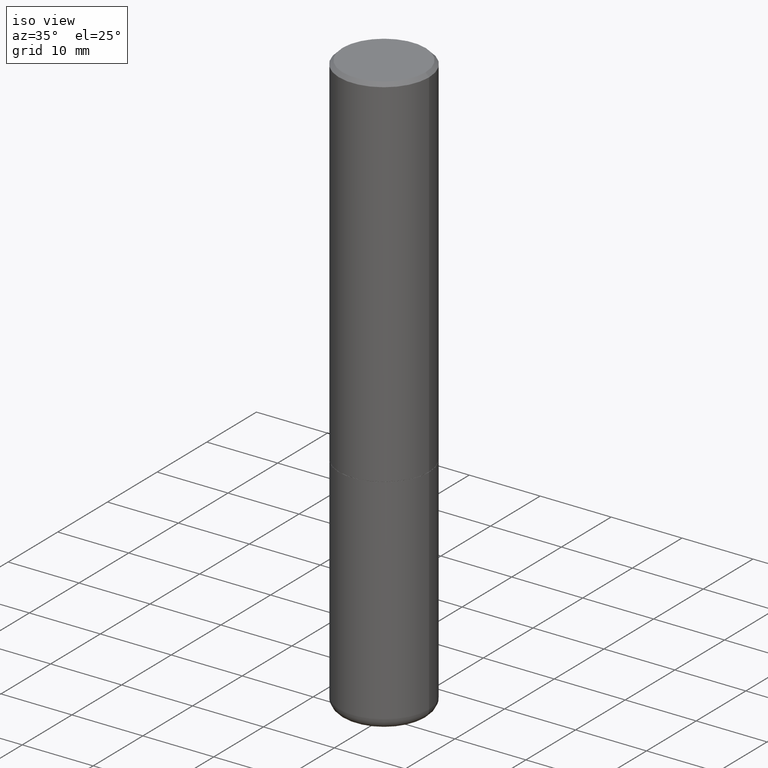
[diagram: clean part render]
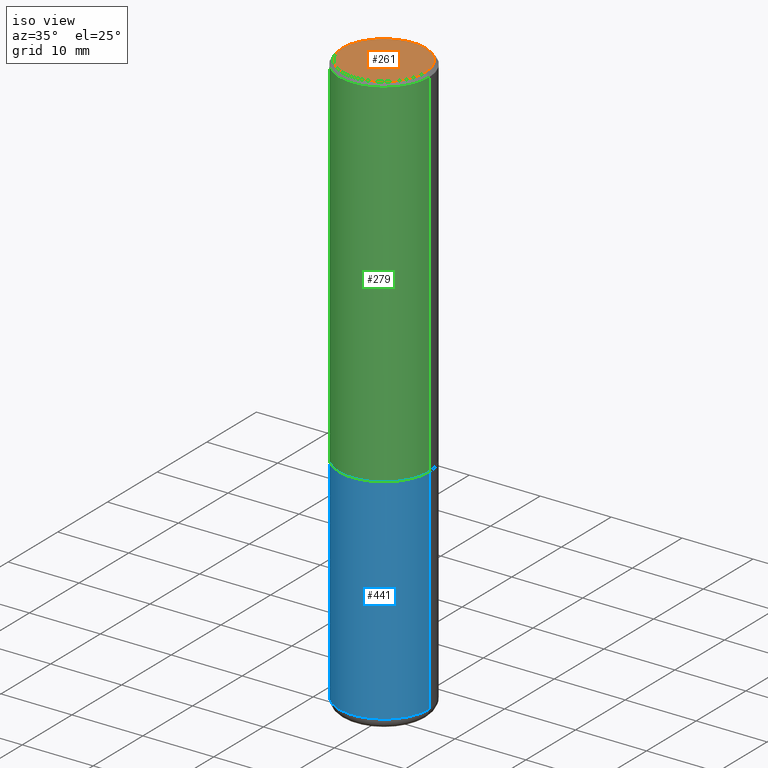
[diagram: same view with three faces highlighted in distinct colors, each labeled with its STEP entity id]
A machine part, iso view with three faces highlighted in distinct colors.
Their STEP definitions:

[orange] entity #261 — the highlighted planar face has unit normal (0, -0, -1).
#49 = EDGE_LOOP ( 'NONE', ( #89, #168 ) ) ;
#83 = DIRECTION ( 'NONE',  ( 1.000000000000000000, -6.982962677686266711E-15, 4.876225828469324576E-29 ) ) ;
#89 = ORIENTED_EDGE ( 'NONE', *, *, #422, .T. ) ;
#101 = CARTESIAN_POINT ( 'NONE',  ( 0.2299999999999992606, -1.681434332853594870E-15, 4.268512490111905999E-18 ) ) ;
#103 = AXIS2_PLACEMENT_3D ( 'NONE', #117, #234, #420 ) ;
#117 = CARTESIAN_POINT ( 'NONE',  ( -1.043851414335219820E-46, 1.490343170380447200E-32, 4.268512490100411279E-18 ) ) ;
#154 = AXIS2_PLACEMENT_3D ( 'NONE', #227, #376, #401 ) ;
#165 = AXIS2_PLACEMENT_3D ( 'NONE', #229, #181, #83 ) ;
#168 = ORIENTED_EDGE ( 'NONE', *, *, #338, .T. ) ;
#181 = DIRECTION ( 'NONE',  ( -2.445468806185136597E-29, 3.491481338843145583E-15, 1.000000000000000000 ) ) ;
#227 = CARTESIAN_POINT ( 'NONE',  ( 1.606081415867835940E-15, 0.2299999999999992606, -8.009064516888707148E-16 ) ) ;
#229 = CARTESIAN_POINT ( 'NONE',  ( -1.043851414335219820E-46, 1.490343170380447200E-32, 4.268512490100411279E-18 ) ) ;
#234 = DIRECTION ( 'NONE',  ( -2.445468806185136597E-29, 3.491481338843145583E-15, 1.000000000000000000 ) ) ;
#253 = FACE_OUTER_BOUND ( 'NONE', #49, .T. ) ;
#254 = VERTEX_POINT ( 'NONE', #101 ) ;
#261 = ADVANCED_FACE ( 'NONE', ( #253 ), #264, .F. ) ;
#264 = PLANE ( 'NONE',  #154 ) ;
#333 = CIRCLE ( 'NONE', #103, 0.2299999999999992606 ) ;
#338 = EDGE_CURVE ( 'NONE', #254, #395, #393, .T. ) ;
#376 = DIRECTION ( 'NONE',  ( 2.438088387897960049E-29, -3.491481338843145188E-15, -1.000000000000000000 ) ) ;
#393 = CIRCLE ( 'NONE', #165, 0.2299999999999992606 ) ;
#395 = VERTEX_POINT ( 'NONE', #484 ) ;
#401 = DIRECTION ( 'NONE',  ( -1.000000000000000000, 6.982962677686265922E-15, -4.876176775795935793E-29 ) ) ;
#420 = DIRECTION ( 'NONE',  ( 1.000000000000000000, -6.982962677686266711E-15, 4.876225828469324576E-29 ) ) ;
#422 = EDGE_CURVE ( 'NONE', #395, #254, #333, .T. ) ;
#484 = CARTESIAN_POINT ( 'NONE',  ( -0.2299999999999992606, 1.640996229256267786E-15, 4.268512490089056766E-18 ) ) ;

[blue] entity #441 — the highlighted cylindrical surface (partial cylindrical patch) has radius 6.35 mm, axis along (-0, 0, 1).
#6 = EDGE_CURVE ( 'NONE', #397, #482, #162, .T. ) ;
#31 = DIRECTION ( 'NONE',  ( -2.445468806185136597E-29, 3.491481338843145583E-15, 1.000000000000000000 ) ) ;
#34 = LINE ( 'NONE', #148, #460 ) ;
#37 = DIRECTION ( 'NONE',  ( 1.000000000000000000, -6.982962677686266711E-15, 4.876176775795935793E-29 ) ) ;
#57 = EDGE_CURVE ( 'NONE', #318, #175, #34, .T. ) ;
#74 = DIRECTION ( 'NONE',  ( 1.000000000000000000, -6.982962677686262766E-15, 0.000000000000000000 ) ) ;
#93 = CIRCLE ( 'NONE', #135, 0.2500000000000000000 ) ;
#95 = EDGE_CURVE ( 'NONE', #175, #482, #414, .T. ) ;
#96 = DIRECTION ( 'NONE',  ( 1.000000000000000000, -6.982962677686268288E-15, 0.000000000000000000 ) ) ;
#113 = CARTESIAN_POINT ( 'NONE',  ( 0.000000000000000000, 0.000000000000000000, 0.000000000000000000 ) ) ;
#130 = DIRECTION ( 'NONE',  ( -2.445468806185136877E-29, 3.491481338843145188E-15, 1.000000000000000000 ) ) ;
#135 = AXIS2_PLACEMENT_3D ( 'NONE', #408, #31, #74 ) ;
#140 = EDGE_CURVE ( 'NONE', #318, #397, #93, .T. ) ;
#148 = CARTESIAN_POINT ( 'NONE',  ( -0.2499999999999998335, 1.776356839400249281E-15, -1.229733772563725605E-29 ) ) ;
#162 = LINE ( 'NONE', #426, #213 ) ;
#175 = VERTEX_POINT ( 'NONE', #392 ) ;
#196 = CARTESIAN_POINT ( 'NONE',  ( 0.2499999999999996669, -8.728703347107855476E-15, -2.000000000000000000 ) ) ;
#210 = ORIENTED_EDGE ( 'NONE', *, *, #140, .T. ) ;
#213 = VECTOR ( 'NONE', #130, 39.37007874015748143 ) ;
#222 = CARTESIAN_POINT ( 'NONE',  ( 4.890937612370273194E-29, -6.982962677686291165E-15, -2.000000000000000000 ) ) ;
#267 = DIRECTION ( 'NONE',  ( -2.445468806185136597E-29, 3.491481338843145583E-15, 1.000000000000000000 ) ) ;
#277 = AXIS2_PLACEMENT_3D ( 'NONE', #222, #490, #96 ) ;
#282 = ORIENTED_EDGE ( 'NONE', *, *, #57, .F. ) ;
#297 = CYLINDRICAL_SURFACE ( 'NONE', #358, 0.2499999999999998335 ) ;
#301 = FACE_OUTER_BOUND ( 'NONE', #361, .T. ) ;
#318 = VERTEX_POINT ( 'NONE', #415 ) ;
#329 = DIRECTION ( 'NONE',  ( -2.445468806185136877E-29, 3.491481338843145188E-15, 1.000000000000000000 ) ) ;
#340 = CARTESIAN_POINT ( 'NONE',  ( 0.2500000000000000000, -1.288357411702585207E-14, -3.190002284616149542 ) ) ;
#358 = AXIS2_PLACEMENT_3D ( 'NONE', #113, #267, #37 ) ;
#361 = EDGE_LOOP ( 'NONE', ( #282, #210, #383, #478 ) ) ;
#383 = ORIENTED_EDGE ( 'NONE', *, *, #6, .T. ) ;
#392 = CARTESIAN_POINT ( 'NONE',  ( -0.2499999999999996669, -7.284041223245038997E-15, -2.000000000000000000 ) ) ;
#397 = VERTEX_POINT ( 'NONE', #340 ) ;
#408 = CARTESIAN_POINT ( 'NONE',  ( 7.801051078688113029E-29, -1.113783344760428697E-14, -3.190002284616149542 ) ) ;
#414 = CIRCLE ( 'NONE', #277, 0.2499999999999996669 ) ;
#415 = CARTESIAN_POINT ( 'NONE',  ( -0.2500000000000000000, -7.284041223245037419E-15, -3.190002284616149542 ) ) ;
#426 = CARTESIAN_POINT ( 'NONE',  ( 0.2499999999999998335, -1.745740669421565494E-15, 1.219044193948983107E-29 ) ) ;
#441 = ADVANCED_FACE ( 'NONE', ( #301 ), #297, .T. ) ;
#460 = VECTOR ( 'NONE', #329, 39.37007874015748143 ) ;
#478 = ORIENTED_EDGE ( 'NONE', *, *, #95, .F. ) ;
#482 = VERTEX_POINT ( 'NONE', #196 ) ;
#490 = DIRECTION ( 'NONE',  ( -2.445468806185136597E-29, 3.491481338843145583E-15, 1.000000000000000000 ) ) ;

[green] entity #279 — the highlighted cylindrical surface (partial cylindrical patch) has radius 6.35 mm, axis along (-0, 0, 1).
#17 = DIRECTION ( 'NONE',  ( -2.445468806185136597E-29, 3.491481338843145583E-15, 1.000000000000000000 ) ) ;
#40 = CARTESIAN_POINT ( 'NONE',  ( 4.888492143564087591E-29, -6.979471196347447369E-15, -1.998999999999999888 ) ) ;
#46 = CARTESIAN_POINT ( 'NONE',  ( 4.890937612370304688E-31, -6.982962677686337215E-17, -0.02000000000000013226 ) ) ;
#53 = VECTOR ( 'NONE', #183, 39.37007874015748143 ) ;
#62 = CARTESIAN_POINT ( 'NONE',  ( -0.2499999999999994171, 1.675911042644699238E-15, -0.02000000000000013226 ) ) ;
#65 = DIRECTION ( 'NONE',  ( 1.000000000000000000, -6.982962677686266711E-15, 4.876176775795935232E-29 ) ) ;
#108 = CARTESIAN_POINT ( 'NONE',  ( -0.2499999999999996114, -1.748293572161906447E-15, -1.998999999999999888 ) ) ;
#115 = CARTESIAN_POINT ( 'NONE',  ( 0.2499999999999994171, -1.784954126219742244E-15, -0.02000000000000013226 ) ) ;
#123 = ORIENTED_EDGE ( 'NONE', *, *, #367, .T. ) ;
#138 = DIRECTION ( 'NONE',  ( -2.445468806185136877E-29, 3.491481338843145188E-15, 1.000000000000000000 ) ) ;
#155 = CIRCLE ( 'NONE', #366, 0.2499999999999994171 ) ;
#171 = FACE_OUTER_BOUND ( 'NONE', #273, .T. ) ;
#183 = DIRECTION ( 'NONE',  ( -2.445468806185136877E-29, 3.491481338843145188E-15, 1.000000000000000000 ) ) ;
#190 = DIRECTION ( 'NONE',  ( 1.000000000000000000, -6.982962677686264344E-15, 0.000000000000000000 ) ) ;
#200 = CIRCLE ( 'NONE', #394, 0.2499999999999996669 ) ;
#211 = EDGE_CURVE ( 'NONE', #429, #352, #406, .T. ) ;
#255 = AXIS2_PLACEMENT_3D ( 'NONE', #400, #17, #65 ) ;
#258 = CARTESIAN_POINT ( 'NONE',  ( 0.2499999999999995282, -1.745740669421563325E-15, 1.219044193948981566E-29 ) ) ;
#273 = EDGE_LOOP ( 'NONE', ( #346, #123, #391, #364 ) ) ;
#276 = VERTEX_POINT ( 'NONE', #62 ) ;
#279 = ADVANCED_FACE ( 'NONE', ( #171 ), #436, .T. ) ;
#296 = LINE ( 'NONE', #419, #53 ) ;
#327 = EDGE_CURVE ( 'NONE', #347, #276, #296, .T. ) ;
#346 = ORIENTED_EDGE ( 'NONE', *, *, #327, .F. ) ;
#347 = VERTEX_POINT ( 'NONE', #108 ) ;
#352 = VERTEX_POINT ( 'NONE', #115 ) ;
#364 = ORIENTED_EDGE ( 'NONE', *, *, #448, .F. ) ;
#366 = AXIS2_PLACEMENT_3D ( 'NONE', #46, #418, #455 ) ;
#367 = EDGE_CURVE ( 'NONE', #347, #429, #200, .T. ) ;
#391 = ORIENTED_EDGE ( 'NONE', *, *, #211, .T. ) ;
#394 = AXIS2_PLACEMENT_3D ( 'NONE', #40, #405, #190 ) ;
#400 = CARTESIAN_POINT ( 'NONE',  ( 0.000000000000000000, 0.000000000000000000, 0.000000000000000000 ) ) ;
#405 = DIRECTION ( 'NONE',  ( -2.445468806185136597E-29, 3.491481338843145583E-15, 1.000000000000000000 ) ) ;
#406 = LINE ( 'NONE', #258, #423 ) ;
#418 = DIRECTION ( 'NONE',  ( -2.445468806185136597E-29, 3.491481338843145583E-15, 1.000000000000000000 ) ) ;
#419 = CARTESIAN_POINT ( 'NONE',  ( -0.2499999999999995282, 1.776356839400247112E-15, -1.229733772563724063E-29 ) ) ;
#423 = VECTOR ( 'NONE', #138, 39.37007874015748143 ) ;
#429 = VERTEX_POINT ( 'NONE', #489 ) ;
#436 = CYLINDRICAL_SURFACE ( 'NONE', #255, 0.2499999999999995282 ) ;
#448 = EDGE_CURVE ( 'NONE', #276, #352, #155, .T. ) ;
#455 = DIRECTION ( 'NONE',  ( 1.000000000000000000, -6.982962677686266711E-15, 0.000000000000000000 ) ) ;
#489 = CARTESIAN_POINT ( 'NONE',  ( 0.2499999999999996669, -8.725211865769010891E-15, -1.998999999999999888 ) ) ;